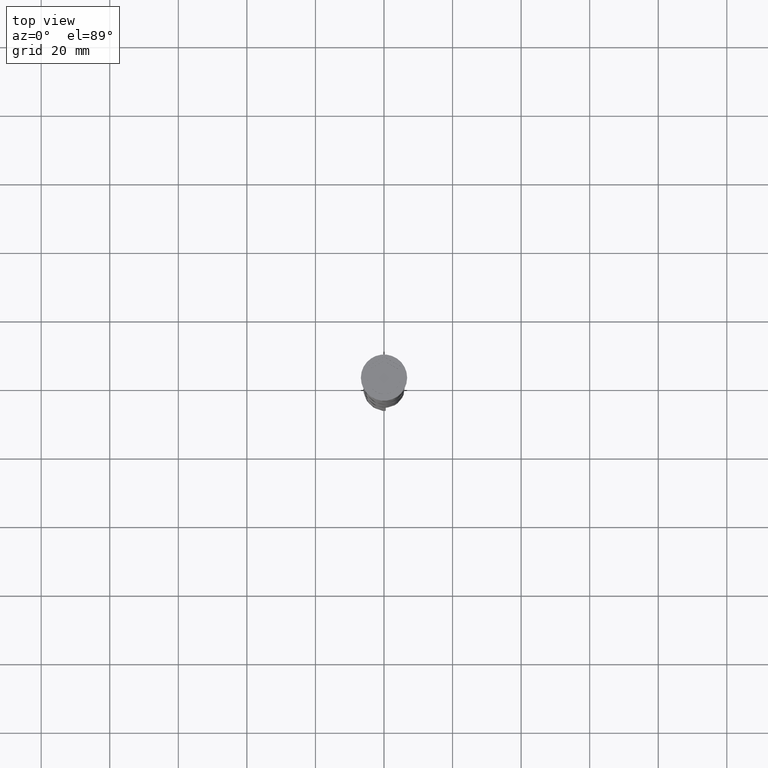
[diagram: clean part render]
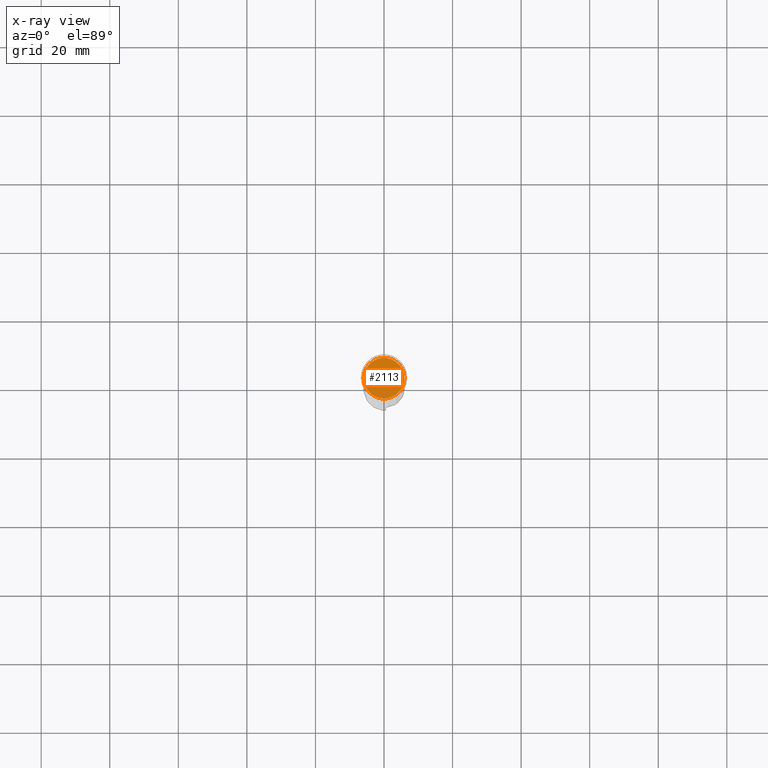
[diagram: x-ray — body ghosted, one internal face saturated and labeled with its STEP entity id]
A machine part, top view, then the same camera in x-ray: the body is ghosted and one INTERNAL B-rep face — a face not visible from any outside direction — is saturated and labeled: STEP entity #2113.
In plain terms, the highlighted planar face has unit normal (0, 0, -1).
Its self-contained STEP definition (entity closure, byte-faithful):
#136 = EDGE_CURVE ( 'NONE', #2940, #3638, #3108, .T. ) ;
#198 = EDGE_LOOP ( 'NONE', ( #1226, #3339 ) ) ;
#534 = CARTESIAN_POINT ( 'NONE',  ( -5.950000000000002842, 0.000000000000000000, -10.50000000000000178 ) ) ;
#934 = EDGE_CURVE ( 'NONE', #3638, #2940, #1448, .T. ) ;
#1007 = PLANE ( 'NONE',  #3107 ) ;
#1042 = CARTESIAN_POINT ( 'NONE',  ( 0.000000000000000000, 0.000000000000000000, -10.50000000000000178 ) ) ;
#1144 = AXIS2_PLACEMENT_3D ( 'NONE', #3480, #3427, #2545 ) ;
#1226 = ORIENTED_EDGE ( 'NONE', *, *, #136, .T. ) ;
#1448 = CIRCLE ( 'NONE', #3596, 5.950000000000002842 ) ;
#1606 = CARTESIAN_POINT ( 'NONE',  ( 0.000000000000000000, 0.000000000000000000, -10.50000000000000178 ) ) ;
#1863 = DIRECTION ( 'NONE',  ( -1.000000000000000000, 0.000000000000000000, -0.000000000000000000 ) ) ;
#1912 = DIRECTION ( 'NONE',  ( 0.000000000000000000, 0.000000000000000000, -1.000000000000000000 ) ) ;
#1980 = CARTESIAN_POINT ( 'NONE',  ( 5.950000000000002842, 7.470345474798858237E-16, -10.50000000000000178 ) ) ;
#2113 = ADVANCED_FACE ( 'NONE', ( #2467 ), #1007, .F. ) ;
#2467 = FACE_OUTER_BOUND ( 'NONE', #198, .T. ) ;
#2545 = DIRECTION ( 'NONE',  ( -1.000000000000000000, 0.000000000000000000, 0.000000000000000000 ) ) ;
#2759 = DIRECTION ( 'NONE',  ( -0.000000000000000000, -0.000000000000000000, 1.000000000000000000 ) ) ;
#2775 = DIRECTION ( 'NONE',  ( -1.000000000000000000, 0.000000000000000000, 0.000000000000000000 ) ) ;
#2940 = VERTEX_POINT ( 'NONE', #534 ) ;
#3107 = AXIS2_PLACEMENT_3D ( 'NONE', #1042, #1912, #1863 ) ;
#3108 = CIRCLE ( 'NONE', #1144, 5.950000000000002842 ) ;
#3339 = ORIENTED_EDGE ( 'NONE', *, *, #934, .T. ) ;
#3427 = DIRECTION ( 'NONE',  ( -0.000000000000000000, -0.000000000000000000, 1.000000000000000000 ) ) ;
#3480 = CARTESIAN_POINT ( 'NONE',  ( 0.000000000000000000, 0.000000000000000000, -10.50000000000000178 ) ) ;
#3596 = AXIS2_PLACEMENT_3D ( 'NONE', #1606, #2759, #2775 ) ;
#3638 = VERTEX_POINT ( 'NONE', #1980 ) ;